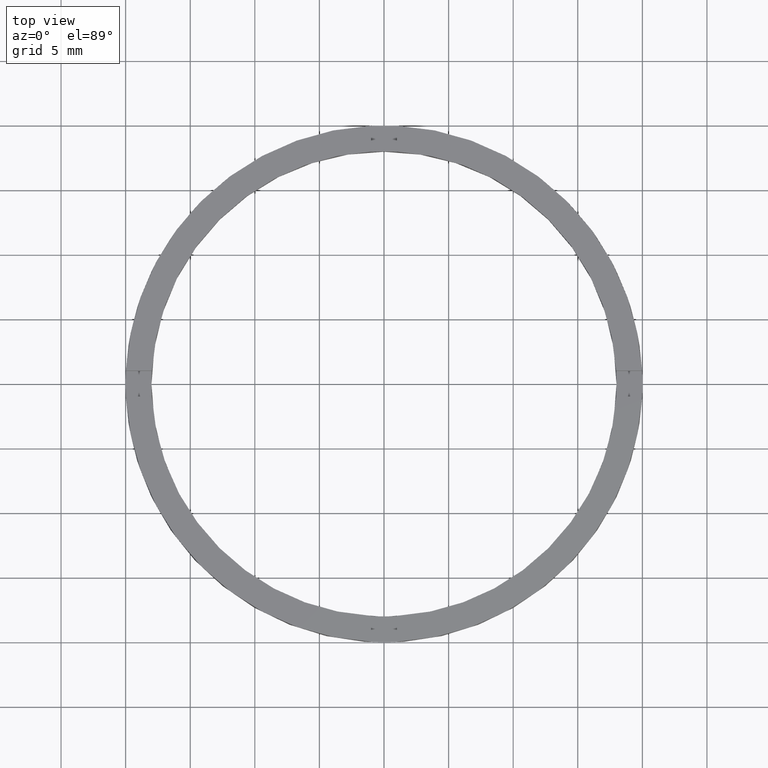
[diagram: clean part render]
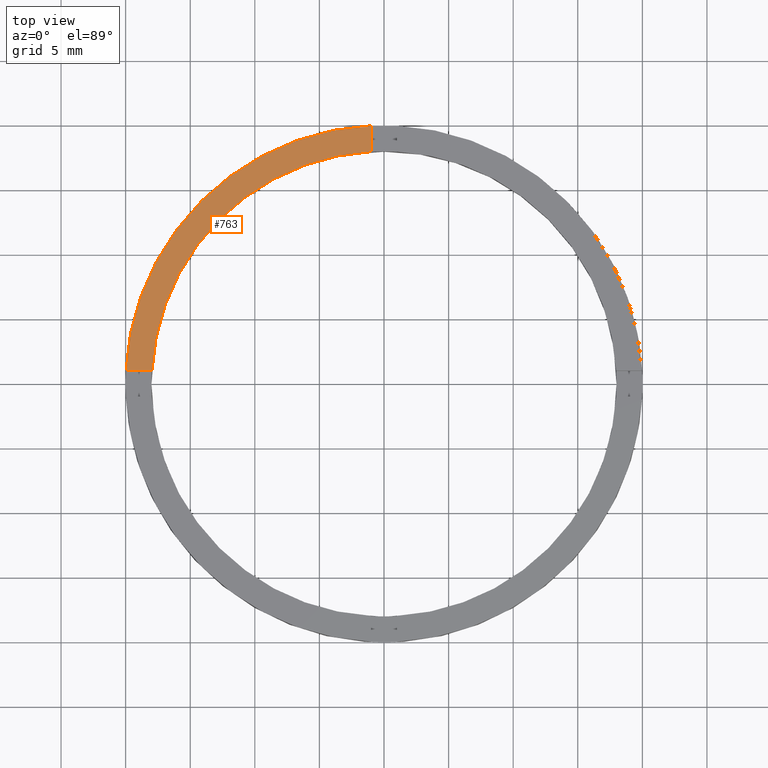
[diagram: same view with one face highlighted and labeled with its STEP entity id]
A machine part, top view. The second image highlights one B-rep face of the part: STEP entity #763.
In plain terms, the highlighted planar face has unit normal (0, 0, 1).
Its self-contained STEP definition (entity closure, byte-faithful):
#20 = VERTEX_POINT ( 'NONE', #137 ) ;
#36 = CIRCLE ( 'NONE', #578, 18.00000000000000000 ) ;
#65 = AXIS2_PLACEMENT_3D ( 'NONE', #591, #539, #354 ) ;
#66 = DIRECTION ( 'NONE',  ( 1.000000000000000000, 0.000000000000000000, -0.000000000000000000 ) ) ;
#87 = CARTESIAN_POINT ( 'NONE',  ( 0.000000000000000000, 0.000000000000000000, 2.500000000000000000 ) ) ;
#96 = PLANE ( 'NONE',  #665 ) ;
#107 = DIRECTION ( 'NONE',  ( -0.000000000000000000, -1.000000000000000000, -0.000000000000000000 ) ) ;
#109 = ORIENTED_EDGE ( 'NONE', *, *, #143, .F. ) ;
#137 = CARTESIAN_POINT ( 'NONE',  ( -17.97220075561142849, 0.9999999999999746869, 2.500000000000000000 ) ) ;
#143 = EDGE_CURVE ( 'NONE', #624, #764, #314, .T. ) ;
#202 = DIRECTION ( 'NONE',  ( 0.000000000000000000, 0.000000000000000000, 1.000000000000000000 ) ) ;
#241 = EDGE_CURVE ( 'NONE', #764, #20, #36, .T. ) ;
#314 = LINE ( 'NONE', #732, #540 ) ;
#316 = ORIENTED_EDGE ( 'NONE', *, *, #600, .T. ) ;
#332 = DIRECTION ( 'NONE',  ( -1.000000000000000000, -1.734723475976807341E-16, 0.000000000000000000 ) ) ;
#349 = ORIENTED_EDGE ( 'NONE', *, *, #241, .F. ) ;
#354 = DIRECTION ( 'NONE',  ( 1.000000000000000000, 0.000000000000000000, 0.000000000000000000 ) ) ;
#358 = VERTEX_POINT ( 'NONE', #512 ) ;
#411 = LINE ( 'NONE', #683, #448 ) ;
#448 = VECTOR ( 'NONE', #332, 1000.000000000000000 ) ;
#450 = DIRECTION ( 'NONE',  ( 0.000000000000000000, 0.000000000000000000, 1.000000000000000000 ) ) ;
#458 = FACE_OUTER_BOUND ( 'NONE', #757, .T. ) ;
#487 = EDGE_CURVE ( 'NONE', #20, #358, #411, .T. ) ;
#499 = ORIENTED_EDGE ( 'NONE', *, *, #487, .F. ) ;
#512 = CARTESIAN_POINT ( 'NONE',  ( -19.97498435543818118, 0.9999999999999742428, 2.500000000000000000 ) ) ;
#537 = CARTESIAN_POINT ( 'NONE',  ( -1.000000000000026867, 17.97220075561142494, 2.500000000000000000 ) ) ;
#539 = DIRECTION ( 'NONE',  ( 0.000000000000000000, 0.000000000000000000, 1.000000000000000000 ) ) ;
#540 = VECTOR ( 'NONE', #107, 1000.000000000000000 ) ;
#578 = AXIS2_PLACEMENT_3D ( 'NONE', #87, #202, #640 ) ;
#591 = CARTESIAN_POINT ( 'NONE',  ( 0.000000000000000000, 0.000000000000000000, 2.500000000000000000 ) ) ;
#599 = CARTESIAN_POINT ( 'NONE',  ( -1.000000000000026867, 19.97498435543817763, 2.500000000000000000 ) ) ;
#600 = EDGE_CURVE ( 'NONE', #624, #358, #676, .T. ) ;
#624 = VERTEX_POINT ( 'NONE', #599 ) ;
#640 = DIRECTION ( 'NONE',  ( 1.000000000000000000, 0.000000000000000000, 0.000000000000000000 ) ) ;
#665 = AXIS2_PLACEMENT_3D ( 'NONE', #722, #450, #66 ) ;
#676 = CIRCLE ( 'NONE', #65, 20.00000000000000000 ) ;
#683 = CARTESIAN_POINT ( 'NONE',  ( -10.00000000000018652, 0.9999999999999759082, 2.500000000000000000 ) ) ;
#722 = CARTESIAN_POINT ( 'NONE',  ( 0.000000000000000000, 0.000000000000000000, 2.500000000000000000 ) ) ;
#732 = CARTESIAN_POINT ( 'NONE',  ( -1.000000000000026867, 10.00000000000000000, 2.500000000000000000 ) ) ;
#757 = EDGE_LOOP ( 'NONE', ( #109, #316, #499, #349 ) ) ;
#763 = ADVANCED_FACE ( 'NONE', ( #458 ), #96, .T. ) ;
#764 = VERTEX_POINT ( 'NONE', #537 ) ;